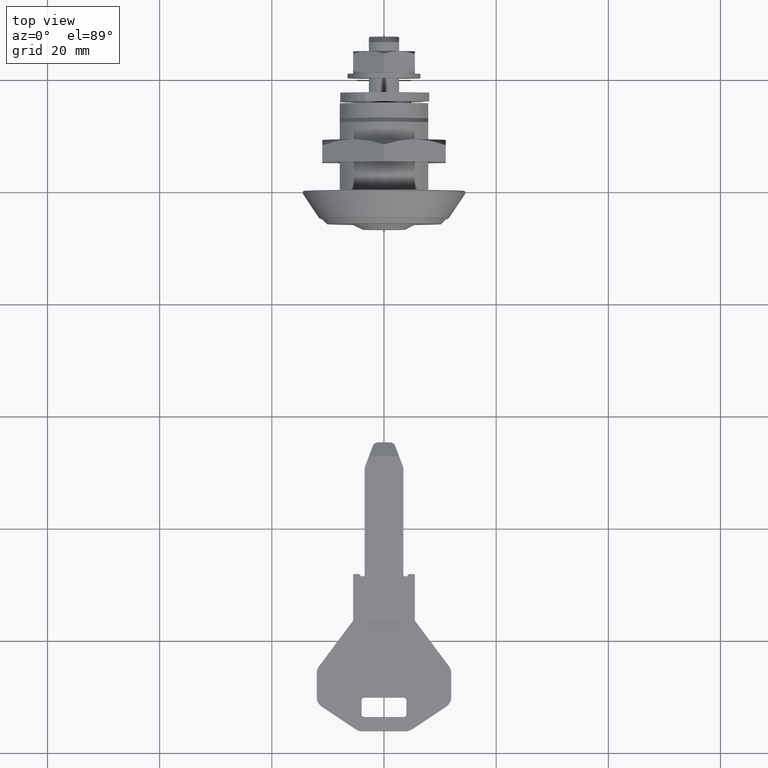
[diagram: clean part render]
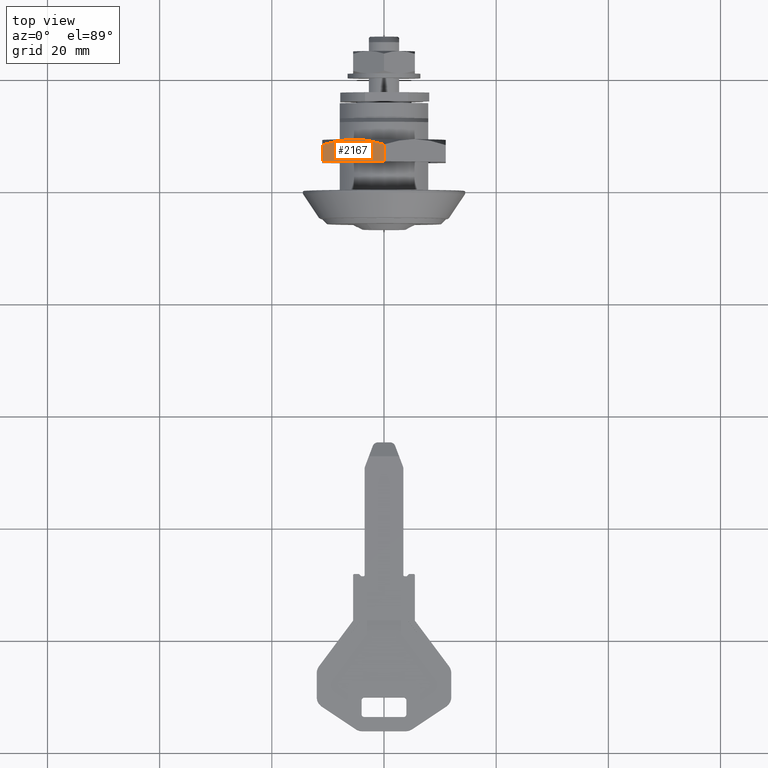
[diagram: same view with one face highlighted and labeled with its STEP entity id]
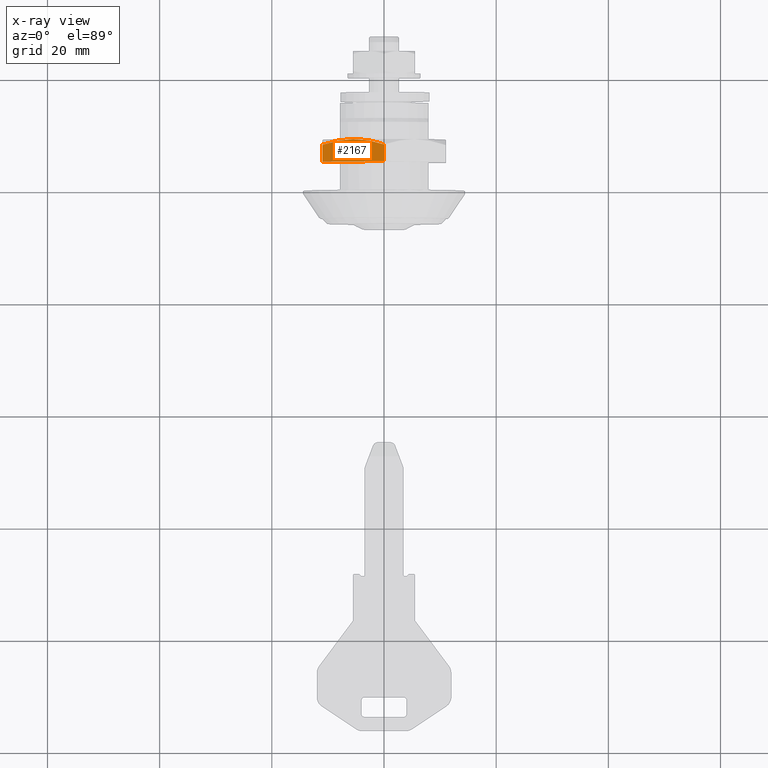
[diagram: x-ray of the same camera — body ghosted, the highlighted face saturated]
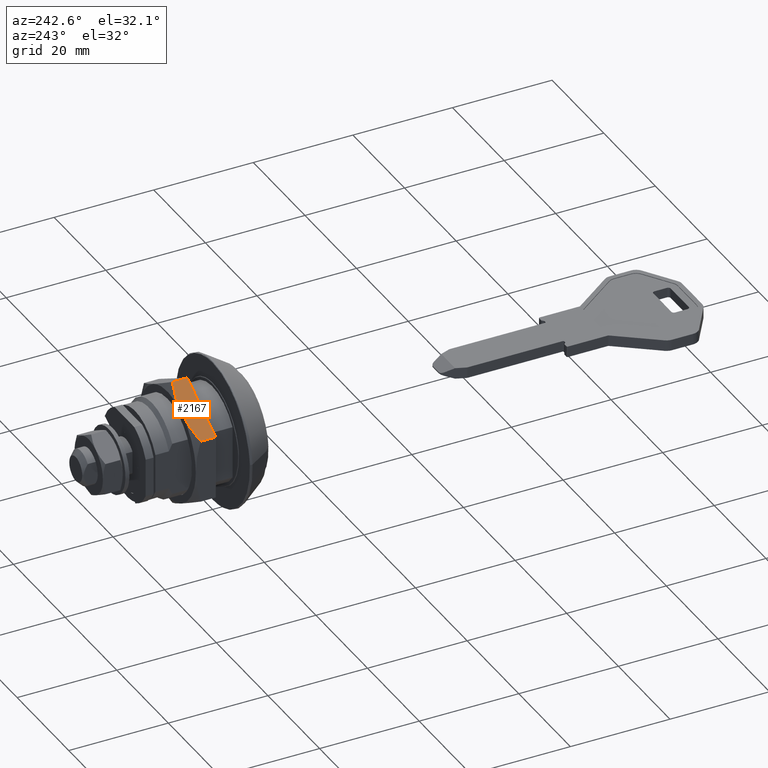
[diagram: same view with one face highlighted and labeled with its STEP entity id]
A machine part, top view. The second image highlights one B-rep face of the part: STEP entity #2167.
The next image is the same camera in x-ray: the body ghosted, the highlighted face saturated — about 0% of this face is hidden behind the body in this view.
A second angle (auxiliary view) of the same face is appended — the face is thin or edge-on in the first view.
In plain terms, the highlighted face is a freeform B-spline surface patch.
Its self-contained STEP definition (entity closure, byte-faithful):
#1654=CARTESIAN_POINT('',(-5.499999999943149,9.100000000000001,9.526279441588130));
#1655=VERTEX_POINT('',#1654);
#1964=CARTESIAN_POINT('',(-10.999999999833340,8.100000000000001,6.350852961183510));
#1965=VERTEX_POINT('',#1964);
#1982=CARTESIAN_POINT('',(-10.999999999833340,8.100000000000001,6.350852961183510));
#1983=CARTESIAN_POINT('',(-10.102609328937110,8.404464325272187,6.868961706593655));
#1984=CARTESIAN_POINT('',(-9.198472688428904,8.655519008547103,7.390965239375199));
#1985=CARTESIAN_POINT('',(-7.827665716598270,8.916493014381487,8.182401013568525));
#1986=CARTESIAN_POINT('',(-7.368290275800583,8.984167932318151,8.447621547972139));
#1987=CARTESIAN_POINT('',(-6.444011403273565,9.075751188499346,8.981254203831822));
#1988=CARTESIAN_POINT('',(-5.979103148992560,9.099621345315036,9.249669109589405));
#1989=CARTESIAN_POINT('',(-5.507484992355912,9.099998503389848,9.521957979278252));
#1990=CARTESIAN_POINT('',(-5.503742590664058,9.099999999465346,9.524118655902459));
#1991=CARTESIAN_POINT('',(-5.499999999894779,9.099999998564407,9.526279441690567));
#1992=B_SPLINE_CURVE_WITH_KNOTS('',3,(#1982,#1983,#1984,#1985,#1986,#1987,#1988,#1989,#1990,#1991),.UNSPECIFIED.,.F.,.U.,(4,2,2,2,4),(0.0,0.250000000000000,0.375000000000000,0.500000000000000,0.500999787632985),.UNSPECIFIED.);
#1993=EDGE_CURVE('',#1965,#1655,#1992,.T.);
#2013=CARTESIAN_POINT('',(1.148895E-010,8.100000000000001,12.701705922104500));
#2014=VERTEX_POINT('',#2013);
#2015=CARTESIAN_POINT('',(-5.499999999943149,9.100000000000001,9.526279441588130));
#2016=CARTESIAN_POINT('',(-5.386761786047698,9.099999971302466,9.591657554937726));
#2017=CARTESIAN_POINT('',(-5.273350478917489,9.098629515800859,9.657135603638494));
#2018=CARTESIAN_POINT('',(-5.042425052136021,9.093036632979292,9.790460460953483));
#2019=CARTESIAN_POINT('',(-4.925050294207331,9.088722183472761,9.858226809039669));
#2020=CARTESIAN_POINT('',(-4.573875231281981,9.071457702768910,10.060977826152280));
#2021=CARTESIAN_POINT('',(-4.340603463208800,9.054173287282595,10.195657344243649));
#2022=CARTESIAN_POINT('',(-3.643211323597633,8.985758877748076,10.598296883778829));
#2023=CARTESIAN_POINT('',(-3.181519654876811,8.918029869634360,10.864854692997371));
#2024=CARTESIAN_POINT('',(-1.804967584971054,8.656592680717957,11.659607401110890));
#2025=CARTESIAN_POINT('',(-0.898595200325917,8.404872994787304,12.182901741371730));
#2026=CARTESIAN_POINT('',(4.857423E-011,8.099999999943833,12.701705922200381));
#2027=B_SPLINE_CURVE_WITH_KNOTS('',3,(#2015,#2016,#2017,#2018,#2019,#2020,#2021,#2022,#2023,#2024,#2025,#2026),.UNSPECIFIED.,.F.,.U.,(4,2,2,2,2,4),(0.500999787661289,0.531250000000000,0.562500000000000,0.625000000000000,0.750000000000000,1.0),.UNSPECIFIED.);
#2028=EDGE_CURVE('',#1655,#2014,#2027,.T.);
#2128=CARTESIAN_POINT('',(-1.000413E-011,5.099999999999994,12.701705922166560));
#2129=VERTEX_POINT('',#2128);
#2130=CARTESIAN_POINT('',(1.148895E-010,8.100000000000001,12.701705922104500));
#2131=CARTESIAN_POINT('',(-1.000413E-011,5.099999999999994,12.701705922166560));
#2132=QUASI_UNIFORM_CURVE('',1,(#2130,#2131),.UNSPECIFIED.,.F.,.U.);
#2133=EDGE_CURVE('',#2014,#2129,#2132,.T.);
#2145=CARTESIAN_POINT('',(0.549449978739992,4.900200007752773,13.018931015304060));
#2146=CARTESIAN_POINT('',(-11.549450273736090,4.900200007752773,6.033627697639505));
#2147=CARTESIAN_POINT('',(0.549449978739993,9.299800099535581,13.018931015304060));
#2148=CARTESIAN_POINT('',(-11.549450273736090,9.299800099535581,6.033627697639505));
#2149=B_SPLINE_SURFACE_WITH_KNOTS('',1,1,((#2145,#2147),(#2146,#2148)),.UNSPECIFIED.,.F.,.F.,.U.,(2,2),(2,2),(0.0,13.970606635330521),(0.0,4.399600091782808),.UNSPECIFIED.);
#2150=ORIENTED_EDGE('',*,*,#1993,.F.);
#2151=CARTESIAN_POINT('',(-11.000000000009900,5.099999999999994,6.350852961081590));
#2152=VERTEX_POINT('',#2151);
#2153=CARTESIAN_POINT('',(-10.999999999833340,8.100000000000001,6.350852961183510));
#2154=CARTESIAN_POINT('',(-11.000000000009900,5.099999999999994,6.350852961081590));
#2155=QUASI_UNIFORM_CURVE('',1,(#2153,#2154),.UNSPECIFIED.,.F.,.U.);
#2156=EDGE_CURVE('',#1965,#2152,#2155,.T.);
#2157=ORIENTED_EDGE('',*,*,#2156,.T.);
#2158=CARTESIAN_POINT('',(-11.000000000009900,5.099999999999994,6.350852961081590));
#2159=CARTESIAN_POINT('',(-1.000413E-011,5.099999999999994,12.701705922166560));
#2160=QUASI_UNIFORM_CURVE('',1,(#2158,#2159),.UNSPECIFIED.,.F.,.U.);
#2161=EDGE_CURVE('',#2152,#2129,#2160,.T.);
#2162=ORIENTED_EDGE('',*,*,#2161,.T.);
#2163=ORIENTED_EDGE('',*,*,#2133,.F.);
#2164=ORIENTED_EDGE('',*,*,#2028,.F.);
#2165=EDGE_LOOP('',(#2150,#2157,#2162,#2163,#2164));
#2166=FACE_OUTER_BOUND('',#2165,.T.);
#2167=ADVANCED_FACE('',(#2166),#2149,.F.);